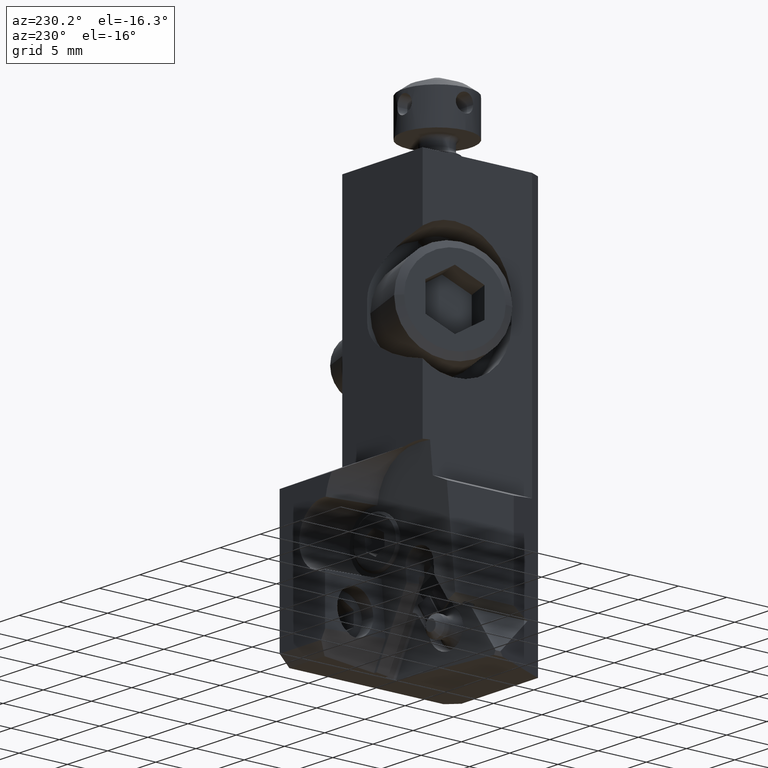
[diagram: clean part render]
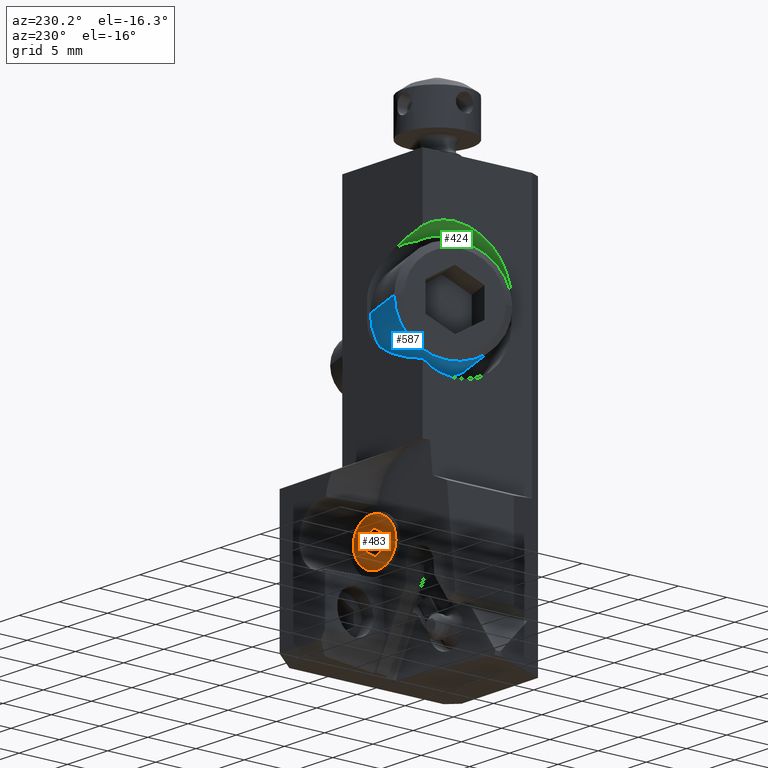
[diagram: same view with three faces highlighted in distinct colors, each labeled with its STEP entity id]
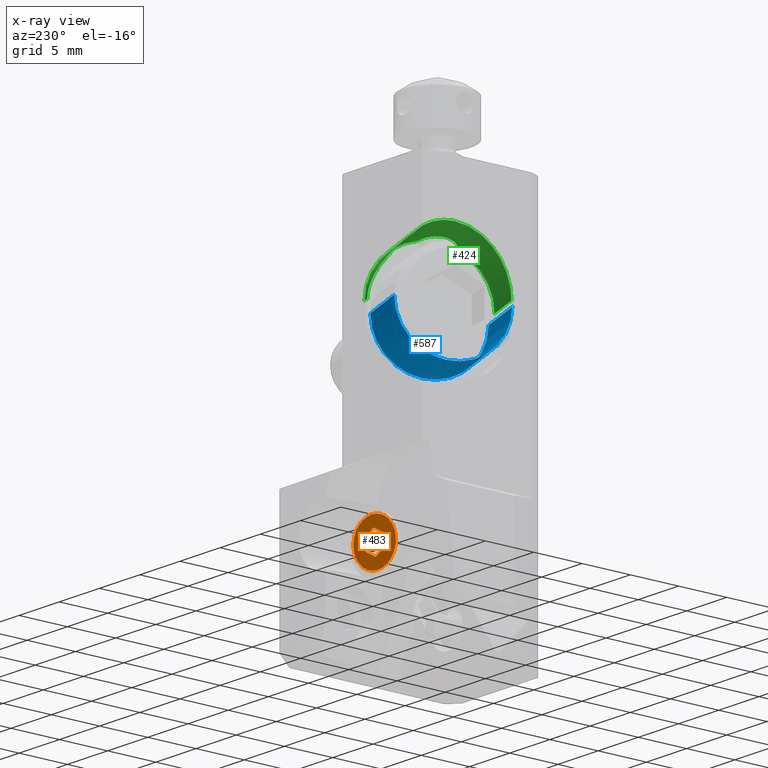
[diagram: x-ray of the same camera — body ghosted, the three highlighted faces saturated]
A machine part, auxiliary view with three faces highlighted in distinct colors.
The next image is the same camera in x-ray (body ghosted, the three faces saturated) — at least one of them is partly hidden behind the body in this view.
Their STEP definitions:

[orange] entity #483 — the highlighted planar face has unit normal (-0.1299, 0.987, -0.095).
#123=FACE_BOUND('',#1027,.T.);
#124=FACE_BOUND('',#1028,.T.);
#284=CIRCLE('',#4442,2.300000000004);
#285=CIRCLE('',#4443,2.299999999999);
#286=CIRCLE('',#4445,2.299999999999);
#483=ADVANCED_FACE('',(#123,#124),#656,.T.);
#656=PLANE('',#4446);
#1027=EDGE_LOOP('',(#1858,#1859,#1860));
#1028=EDGE_LOOP('',(#1861,#1862,#1863,#1864,#1865,#1866));
#1858=ORIENTED_EDGE('',*,*,#3112,.F.);
#1859=ORIENTED_EDGE('',*,*,#3111,.F.);
#1860=ORIENTED_EDGE('',*,*,#3110,.F.);
#1861=ORIENTED_EDGE('',*,*,#3113,.F.);
#1862=ORIENTED_EDGE('',*,*,#3114,.T.);
#1863=ORIENTED_EDGE('',*,*,#3115,.F.);
#1864=ORIENTED_EDGE('',*,*,#3116,.F.);
#1865=ORIENTED_EDGE('',*,*,#3117,.T.);
#1866=ORIENTED_EDGE('',*,*,#3118,.F.);
#2620=VERTEX_POINT('',#6724);
#2621=VERTEX_POINT('',#6726);
#2622=VERTEX_POINT('',#6728);
#2623=VERTEX_POINT('',#6733);
#2624=VERTEX_POINT('',#6734);
#2625=VERTEX_POINT('',#6736);
#2626=VERTEX_POINT('',#6738);
#2627=VERTEX_POINT('',#6740);
#2628=VERTEX_POINT('',#6742);
#3110=EDGE_CURVE('',#2621,#2622,#284,.T.);
#3111=EDGE_CURVE('',#2622,#2620,#285,.T.);
#3112=EDGE_CURVE('',#2620,#2621,#286,.T.);
#3113=EDGE_CURVE('',#2623,#2624,#3587,.T.);
#3114=EDGE_CURVE('',#2623,#2625,#3588,.T.);
#3115=EDGE_CURVE('',#2626,#2625,#3589,.T.);
#3116=EDGE_CURVE('',#2627,#2626,#3590,.T.);
#3117=EDGE_CURVE('',#2627,#2628,#3591,.T.);
#3118=EDGE_CURVE('',#2624,#2628,#3592,.T.);
#3587=LINE('',#6732,#3940);
#3588=LINE('',#6735,#3941);
#3589=LINE('',#6737,#3942);
#3590=LINE('',#6739,#3943);
#3591=LINE('',#6741,#3944);
#3592=LINE('',#6743,#3945);
#3940=VECTOR('',#5339,1.);
#3941=VECTOR('',#5340,1.);
#3942=VECTOR('',#5341,1.);
#3943=VECTOR('',#5342,1.);
#3944=VECTOR('',#5343,1.);
#3945=VECTOR('',#5344,1.);
#4442=AXIS2_PLACEMENT_3D('',#6727,#5331,#5332);
#4443=AXIS2_PLACEMENT_3D('',#6729,#5333,#5334);
#4445=AXIS2_PLACEMENT_3D('',#6731,#5337,#5338);
#4446=AXIS2_PLACEMENT_3D('',#6744,#5345,#5346);
#5331=DIRECTION('',(0.129935443997,-0.986957683117703,0.0950332159207403));
#5332=DIRECTION('',(0.481217398644809,0.146572302466047,0.864260594607508));
#5333=DIRECTION('',(0.129935443997,-0.986957683117703,0.0950332159207403));
#5334=DIRECTION('',(-0.86691787133275,-0.0665664471394345,0.49398614603967));
#5337=DIRECTION('',(0.129935443997,-0.986957683117703,0.0950332159207403));
#5338=DIRECTION('',(-0.481217398647685,-0.146572302466269,-0.864260594605869));
#5339=DIRECTION('',(-0.0167124436940003,0.0936521138536617,0.995464703440818));
#5340=DIRECTION('',(0.866917871330308,0.0665664471405606,-0.493986146043804));
#5341=DIRECTION('',(-0.850205427636387,-0.160218560993898,-0.501478557398692));
#5342=DIRECTION('',(0.0167124436936497,-0.0936521138551683,-0.995464703440682));
#5343=DIRECTION('',(-0.86691787133059,-0.0665664471406792,0.493986146043294));
#5344=DIRECTION('',(0.850205427635633,0.160218560995306,0.50147855739952));
#5345=DIRECTION('',(-0.129935443996097,0.986957683118076,-0.0950332159180977));
#5346=DIRECTION('',(-0.481217398646505,-0.146572302463413,-0.864260594607011));
#6724=CARTESIAN_POINT('',(-5.781368061972,11.71245838329,-33.27008069725));
#6726=CARTESIAN_POINT('',(-3.567768028197,12.38669097463,-29.29448196205));
#6727=CARTESIAN_POINT('',(-4.674568045082,12.04957467896,-31.28228132965));
#6728=CARTESIAN_POINT('',(-6.668479149147,11.89647185054,-30.14611319376));
#6729=CARTESIAN_POINT('',(-4.674568045082,12.04957467896,-31.28228132965));
#6731=CARTESIAN_POINT('',(-4.674568045082,12.04957467896,-31.28228132965));
#6732=CARTESIAN_POINT('',(-5.680844026737,11.85994510886,-31.87581532887));
#6733=CARTESIAN_POINT('',(-5.680844026737,11.85994510886,-31.87581532887));
#6734=CARTESIAN_POINT('',(-5.700624341161,11.9707887588,-30.69761510915));
#6735=CARTESIAN_POINT('',(-5.680844026737,11.85994510886,-31.87581532887));
#6736=CARTESIAN_POINT('',(-4.654787730661,11.93873102902,-32.46048154938));
#6737=CARTESIAN_POINT('',(-3.648511749009,12.12836059912,-31.86694755016));
#6738=CARTESIAN_POINT('',(-3.648511749009,12.12836059912,-31.86694755016));
#6739=CARTESIAN_POINT('',(-3.668292063433,12.23920424907,-30.68874733044));
#6740=CARTESIAN_POINT('',(-3.668292063433,12.23920424907,-30.68874733044));
#6741=CARTESIAN_POINT('',(-3.668292063433,12.23920424907,-30.68874733044));
#6742=CARTESIAN_POINT('',(-4.69434835951,12.16041832891,-30.10408110993));
#6743=CARTESIAN_POINT('',(-5.700624341161,11.9707887588,-30.69761510915));
#6744=CARTESIAN_POINT('',(-4.674568596003,12.04957463666,-31.28228101573));

[blue] entity #587 — the highlighted cylindrical surface (partial cylindrical patch) has radius 5 mm, axis along (0.9397, -0.342, 0).
#204=CYLINDRICAL_SURFACE('',#4645,5.000000000004);
#372=CIRCLE('',#4639,5.000000000004);
#375=CIRCLE('',#4644,4.999999999994);
#587=ADVANCED_FACE('',(#908),#204,.T.);
#908=FACE_OUTER_BOUND('',#1137,.T.);
#1137=EDGE_LOOP('',(#2355,#2356,#2357,#2358));
#2355=ORIENTED_EDGE('',*,*,#3359,.T.);
#2356=ORIENTED_EDGE('',*,*,#3356,.F.);
#2357=ORIENTED_EDGE('',*,*,#3354,.T.);
#2358=ORIENTED_EDGE('',*,*,#3358,.F.);
#2770=VERTEX_POINT('',#7712);
#2771=VERTEX_POINT('',#7713);
#2772=VERTEX_POINT('',#7717);
#2773=VERTEX_POINT('',#7719);
#3354=EDGE_CURVE('',#2770,#2771,#372,.T.);
#3356=EDGE_CURVE('',#2770,#2772,#3713,.T.);
#3358=EDGE_CURVE('',#2773,#2771,#3714,.T.);
#3359=EDGE_CURVE('',#2773,#2772,#375,.T.);
#3713=LINE('',#7716,#4066);
#3714=LINE('',#7720,#4067);
#4066=VECTOR('',#5857,1.);
#4067=VECTOR('',#5860,1.);
#4639=AXIS2_PLACEMENT_3D('',#7711,#5851,#5852);
#4644=AXIS2_PLACEMENT_3D('',#7722,#5863,#5864);
#4645=AXIS2_PLACEMENT_3D('',#7723,#5865,#5866);
#5851=DIRECTION('',(-0.939692620785421,0.342020143327008,0.));
#5852=DIRECTION('',(0.342020143327008,0.939692620785421,0.));
#5857=DIRECTION('',(-0.939692620785681,0.342020143326293,0.));
#5860=DIRECTION('',(0.939692620785421,-0.342020143327008,0.));
#5863=DIRECTION('',(0.939692620786298,-0.342020143324599,0.));
#5864=DIRECTION('',(-0.342020143324599,-0.939692620786298,0.));
#5865=DIRECTION('',(0.939692620785421,-0.342020143327008,0.));
#5866=DIRECTION('',(-0.342020143327008,-0.939692620785421,0.));
#7711=CARTESIAN_POINT('',(-5.361844275288,6.951551716966,-12.));
#7712=CARTESIAN_POINT('',(-3.651743558655,11.6500148209,-12.));
#7713=CARTESIAN_POINT('',(-7.071944991916,2.253088613036,-12.));
#7716=CARTESIAN_POINT('',(-3.651743558655,11.6500148209,-12.));
#7717=CARTESIAN_POINT('',(-8.914022235056,13.56532762353,-12.));
#7719=CARTESIAN_POINT('',(-12.33422366831,4.168401415664,-12.));
#7720=CARTESIAN_POINT('',(-12.33422366831,4.168401415664,-12.));
#7722=CARTESIAN_POINT('',(-10.62412295168,8.866864519598,-12.));
#7723=CARTESIAN_POINT('',(-10.72936852522,8.905170775652,-12.));

[green] entity #424 — the highlighted cylindrical surface (partial cylindrical patch) has radius 5.5 mm, axis along (-0.9397, 0.342, 0).
#149=CYLINDRICAL_SURFACE('',#4329,5.5);
#227=CIRCLE('',#4327,5.5);
#228=CIRCLE('',#4328,5.5);
#424=ADVANCED_FACE('',(#751),#149,.F.);
#751=FACE_OUTER_BOUND('',#968,.T.);
#968=EDGE_LOOP('',(#1530,#1531,#1532,#1533,#1534,#1535,#1536,#1537,#1538,
#1539));
#1156=B_SPLINE_CURVE_WITH_KNOTS('',3,(#6357,#6358,#6359,#6360,#6361,#6362,
#6363,#6364,#6365,#6366,#6367,#6368,#6369),.UNSPECIFIED.,.F.,.F.,(4,1,1,
1,1,1,1,1,1,1,4),(0.,0.1,0.2,0.3,0.4,0.5,0.6,0.7,0.8,0.9,1.),
 .UNSPECIFIED.);
#1157=B_SPLINE_CURVE_WITH_KNOTS('',3,(#6371,#6372,#6373,#6374,#6375,#6376,
#6377,#6378,#6379,#6380),.UNSPECIFIED.,.F.,.F.,(4,3,3,4),(0.,0.40915999877659,
0.818098861443494,1.),.UNSPECIFIED.);
#1158=B_SPLINE_CURVE_WITH_KNOTS('',3,(#6382,#6383,#6384,#6385,#6386,#6387,
#6388,#6389,#6390,#6391,#6392,#6393,#6394),.UNSPECIFIED.,.F.,.F.,(4,3,3,
3,4),(0.,0.302663753057725,0.60526775407483,0.906389752017439,1.),
 .UNSPECIFIED.);
#1206=ELLIPSE('',#4317,5.85297774861893,5.5);
#1207=ELLIPSE('',#4318,5.85297774861893,5.5);
#1210=ELLIPSE('',#4324,16.0809242008676,5.5);
#1530=ORIENTED_EDGE('',*,*,#2959,.T.);
#1531=ORIENTED_EDGE('',*,*,#2960,.T.);
#1532=ORIENTED_EDGE('',*,*,#2945,.F.);
#1533=ORIENTED_EDGE('',*,*,#2944,.T.);
#1534=ORIENTED_EDGE('',*,*,#2952,.F.);
#1535=ORIENTED_EDGE('',*,*,#2958,.F.);
#1536=ORIENTED_EDGE('',*,*,#2961,.T.);
#1537=ORIENTED_EDGE('',*,*,#2962,.T.);
#1538=ORIENTED_EDGE('',*,*,#2963,.T.);
#1539=ORIENTED_EDGE('',*,*,#2964,.T.);
#2515=VERTEX_POINT('',#6311);
#2516=VERTEX_POINT('',#6313);
#2517=VERTEX_POINT('',#6315);
#2522=VERTEX_POINT('',#6329);
#2525=VERTEX_POINT('',#6348);
#2526=VERTEX_POINT('',#6352);
#2527=VERTEX_POINT('',#6353);
#2528=VERTEX_POINT('',#6356);
#2529=VERTEX_POINT('',#6370);
#2530=VERTEX_POINT('',#6381);
#2944=EDGE_CURVE('',#2516,#2515,#1206,.T.);
#2945=EDGE_CURVE('',#2516,#2517,#1207,.T.);
#2952=EDGE_CURVE('',#2522,#2515,#1210,.T.);
#2958=EDGE_CURVE('',#2525,#2522,#3498,.T.);
#2959=EDGE_CURVE('',#2526,#2527,#227,.T.);
#2960=EDGE_CURVE('',#2527,#2517,#3499,.T.);
#2961=EDGE_CURVE('',#2525,#2528,#228,.T.);
#2962=EDGE_CURVE('',#2528,#2529,#1156,.T.);
#2963=EDGE_CURVE('',#2529,#2530,#1157,.T.);
#2964=EDGE_CURVE('',#2530,#2526,#1158,.T.);
#3498=LINE('',#6349,#3851);
#3499=LINE('',#6354,#3852);
#3851=VECTOR('',#5010,1.);
#3852=VECTOR('',#5015,1.);
#4317=AXIS2_PLACEMENT_3D('',#6312,#4986,#4987);
#4318=AXIS2_PLACEMENT_3D('',#6314,#4988,#4989);
#4324=AXIS2_PLACEMENT_3D('',#6328,#5003,#5004);
#4327=AXIS2_PLACEMENT_3D('',#6351,#5013,#5014);
#4328=AXIS2_PLACEMENT_3D('',#6355,#5016,#5017);
#4329=AXIS2_PLACEMENT_3D('',#6395,#5018,#5019);
#4986=DIRECTION('',(-1.,0.,0.));
#4987=DIRECTION('',(0.,1.,0.));
#4988=DIRECTION('',(1.,0.,0.));
#4989=DIRECTION('',(0.,1.,0.));
#5003=DIRECTION('',(0.,-1.,0.));
#5004=DIRECTION('',(-1.,0.,0.));
#5010=DIRECTION('',(-0.939692620786622,0.342020143323708,-1.13516862414503E-13));
#5013=DIRECTION('',(0.939692620785681,-0.342020143326293,0.));
#5014=DIRECTION('',(-0.146311004916037,-0.401986182223696,0.903880633237419));
#5015=DIRECTION('',(-0.939692620785854,0.34202014332582,-1.8216020070731E-14));
#5016=DIRECTION('',(0.939692620785681,-0.342020143326293,0.));
#5017=DIRECTION('',(0.342020143326293,0.939692620785681,0.));
#5018=DIRECTION('',(-0.939692620785681,0.342020143326293,0.));
#5019=DIRECTION('',(-5.20417042793042E-15,-1.45085963445333E-14,-1.));
#6311=CARTESIAN_POINT('',(-10.9999999999996,12.3500000000002,-6.48757281635653));
#6312=CARTESIAN_POINT('',(-11.,9.00367257693222,-11.));
#6313=CARTESIAN_POINT('',(-11.,9.003672576931,-5.5));
#6314=CARTESIAN_POINT('',(-11.,9.00367257693222,-11.));
#6315=CARTESIAN_POINT('',(-11.,3.15069482831227,-10.9999999999999));
#6328=CARTESIAN_POINT('',(-20.1939590329615,12.35,-11.));
#6329=CARTESIAN_POINT('',(-4.11303483209171,12.3500000000005,-11.0000000000001));
#6348=CARTESIAN_POINT('',(-3.480733486993,12.1198611313,-11.));
#6349=CARTESIAN_POINT('',(-3.480733486993,12.1198611313,-11.));
#6351=CARTESIAN_POINT('',(-5.361844275283,6.951551716973,-11.));
#6352=CARTESIAN_POINT('',(-6.16655480232106,4.74062771474298,-6.02865651719413));
#6353=CARTESIAN_POINT('',(-7.242955063576,1.783242302652,-11.));
#6354=CARTESIAN_POINT('',(-7.242955063576,1.783242302652,-11.));
#6355=CARTESIAN_POINT('',(-5.361844275287,6.951551716975,-11.));
#6356=CARTESIAN_POINT('',(-5.040404798985,7.834699419828,-5.580892435279));
#6357=CARTESIAN_POINT('',(-5.040404798985,7.834699419828,-5.580892435279));
#6358=CARTESIAN_POINT('',(-5.095795620686,7.850763889541,-5.580224890457));
#6359=CARTESIAN_POINT('',(-5.208644769151,7.877198143585,-5.577842366344));
#6360=CARTESIAN_POINT('',(-5.382664931714,7.898947161381,-5.57129409417));
#6361=CARTESIAN_POINT('',(-5.558567771818,7.902083673817,-5.562230096842));
#6362=CARTESIAN_POINT('',(-5.73368852516,7.886507226864,-5.551358139455));
#6363=CARTESIAN_POINT('',(-5.905860599926,7.852514358313,-5.539510199536));
#6364=CARTESIAN_POINT('',(-6.073715750019,7.800361120737,-5.527589484632));
#6365=CARTESIAN_POINT('',(-6.235100352233,7.730712061323,-5.516611034515));
#6366=CARTESIAN_POINT('',(-6.389215928582,7.643619701922,-5.507535903577));
#6367=CARTESIAN_POINT('',(-6.531868766342,7.541473372906,-5.501482589464));
#6368=CARTESIAN_POINT('',(-6.618514162847,7.464388961434,-5.5000008048));
#6369=CARTESIAN_POINT('',(-6.659531625563,7.423872601166,-5.5000008048));
#6370=CARTESIAN_POINT('',(-6.6595336540672,7.42387465475901,-5.50000000000056));
#6371=CARTESIAN_POINT('',(-6.6595336540672,7.42387465475901,-5.50000000000056));
#6372=CARTESIAN_POINT('',(-6.78656735840794,7.29839289673077,-5.49999992747724));
#6373=CARTESIAN_POINT('',(-6.89437860897641,7.14989801492881,-5.50751750497823));
#6374=CARTESIAN_POINT('',(-6.9742265074183,6.99105074375864,-5.52410337826232));
#6375=CARTESIAN_POINT('',(-7.05405615575807,6.83223977885299,-5.5406854606654));
#6376=CARTESIAN_POINT('',(-7.10812793905569,6.6588904096124,-5.56679501514216));
#6377=CARTESIAN_POINT('',(-7.13313938622328,6.48527801675093,-5.59998876968473));
#6378=CARTESIAN_POINT('',(-7.14438921518418,6.40718938349044,-5.61491889582544));
#6379=CARTESIAN_POINT('',(-7.15,6.32836737020433,-5.63134354291933));
#6380=CARTESIAN_POINT('',(-7.15,6.24999999999997,-5.64883231788988));
#6381=CARTESIAN_POINT('',(-7.15,6.24999999999997,-5.64883231788988));
#6382=CARTESIAN_POINT('',(-7.15,6.24999999999997,-5.64883231788988));
#6383=CARTESIAN_POINT('',(-7.15,6.05930759711958,-5.69138799525754));
#6384=CARTESIAN_POINT('',(-7.11617715418859,5.86759963241111,-5.74132814280682));
#6385=CARTESIAN_POINT('',(-7.05196756739785,5.68973517891518,-5.79048038934016));
#6386=CARTESIAN_POINT('',(-6.98777625137223,5.51192133654783,-5.83961864965748));
#6387=CARTESIAN_POINT('',(-6.891341021936,5.34270612683608,-5.88923193726414));
#6388=CARTESIAN_POINT('',(-6.76924810279495,5.1957186079839,-5.92973927752306));
#6389=CARTESIAN_POINT('',(-6.64796060891565,5.04970073963788,-5.96997939806637));
#6390=CARTESIAN_POINT('',(-6.49719646870241,4.92128122817489,-6.00208491574205));
#6391=CARTESIAN_POINT('',(-6.33007235502199,4.82399863764853,-6.01810894632714));
#6392=CARTESIAN_POINT('',(-6.2772902347843,4.79327427790703,-6.0231697498845));
#6393=CARTESIAN_POINT('',(-6.22258635725862,4.7653718434049,-6.02672178749749));
#6394=CARTESIAN_POINT('',(-6.16655480232106,4.74062771474298,-6.02865651719413));
#6395=CARTESIAN_POINT('',(-5.227571382735,6.902680380817,-11.));